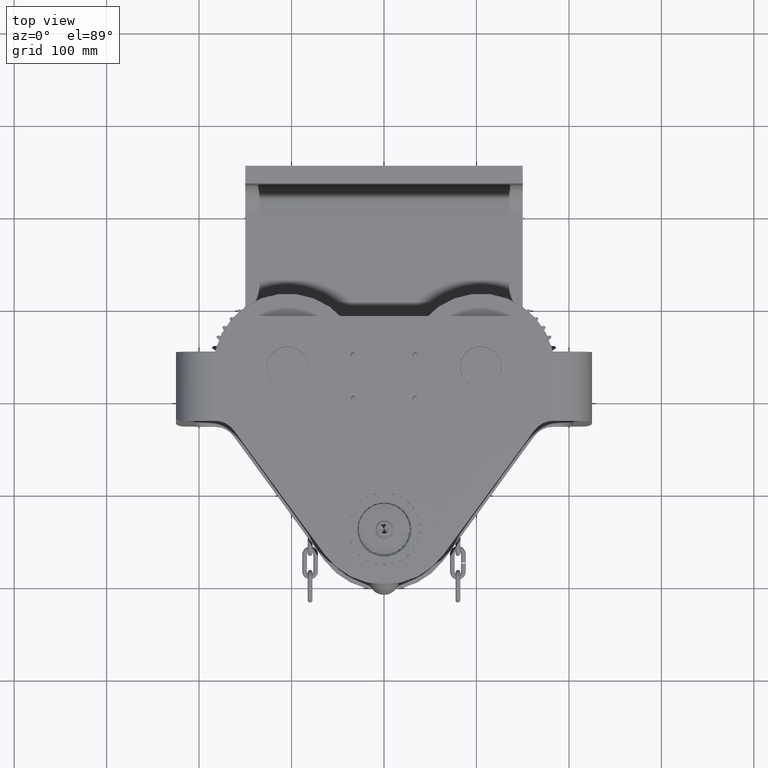
[diagram: clean part render]
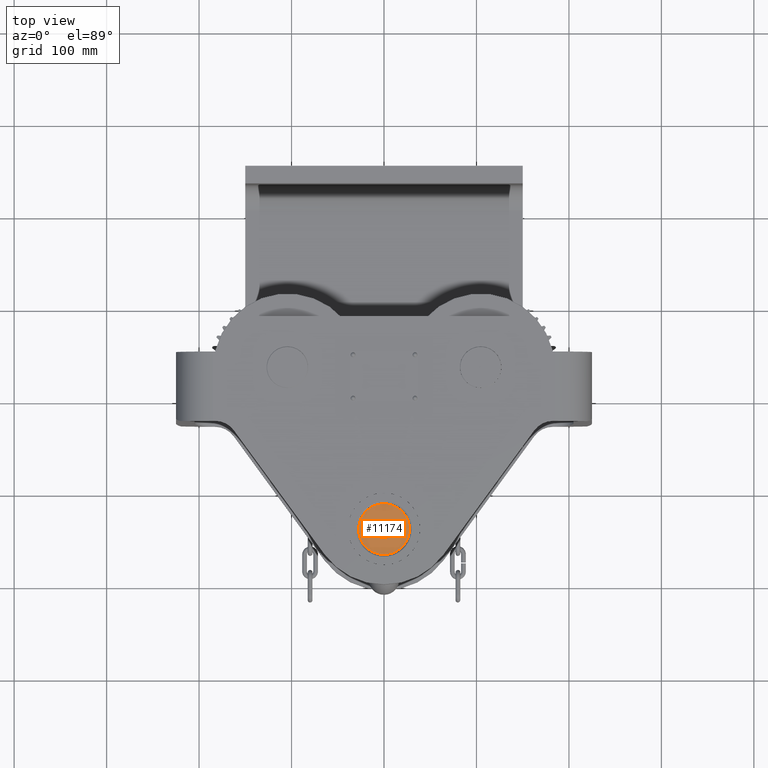
[diagram: same view with one face highlighted and labeled with its STEP entity id]
A machine part, top view. The second image highlights one B-rep face of the part: STEP entity #11174.
In plain terms, the highlighted planar face has unit normal (-0, -0, -1).
Its self-contained STEP definition (entity closure, byte-faithful):
#1401 = CARTESIAN_POINT ( 'NONE',  ( -1.823111284671525700E-014, -215.9999999999998900, 177.0000000000000300 ) ) ;
#2033 = AXIS2_PLACEMENT_3D ( 'NONE', #17138, #37169, #47237 ) ;
#4564 = EDGE_LOOP ( 'NONE', ( #36966 ) ) ;
#5889 = VERTEX_POINT ( 'NONE', #33626 ) ;
#8256 = VERTEX_POINT ( 'NONE', #1401 ) ;
#11174 = ADVANCED_FACE ( 'NONE', ( #53195, #63656 ), #57325, .F. ) ;
#16515 = EDGE_LOOP ( 'NONE', ( #65800 ) ) ;
#17138 = CARTESIAN_POINT ( 'NONE',  ( -1.376419081416092300E-014, -243.4999999999998900, 177.0000000000000300 ) ) ;
#18930 = AXIS2_PLACEMENT_3D ( 'NONE', #21332, #52787, #42175 ) ;
#20863 = EDGE_CURVE ( 'NONE', #8256, #8256, #30596, .T. ) ;
#21332 = CARTESIAN_POINT ( 'NONE',  ( -1.538852609872613600E-014, -233.4999999999998900, 177.0000000000000300 ) ) ;
#23829 = DIRECTION ( 'NONE',  ( -4.087085498318075900E-018, -2.126349141558169400E-017, -1.000000000000000000 ) ) ;
#28189 = CIRCLE ( 'NONE', #50874, 10.49999999999998200 ) ;
#30596 = CIRCLE ( 'NONE', #2033, 27.49999999999999600 ) ;
#33626 = CARTESIAN_POINT ( 'NONE',  ( -1.546974286295439600E-014, -232.9999999999999100, 177.0000000000000300 ) ) ;
#36966 = ORIENTED_EDGE ( 'NONE', *, *, #20863, .T. ) ;
#37169 = DIRECTION ( 'NONE',  ( 4.087085498318075900E-018, 2.126349141558169400E-017, 1.000000000000000000 ) ) ;
#38562 = EDGE_CURVE ( 'NONE', #5889, #5889, #28189, .T. ) ;
#42175 = DIRECTION ( 'NONE',  ( -1.624335284565212700E-016, 1.000000000000000000, -2.126349141558169400E-017 ) ) ;
#47237 = DIRECTION ( 'NONE',  ( -1.624335284565212300E-016, 1.000000000000000000, 0.0000000000000000000 ) ) ;
#50874 = AXIS2_PLACEMENT_3D ( 'NONE', #64295, #23829, #54424 ) ;
#52787 = DIRECTION ( 'NONE',  ( -4.087085498318075900E-018, -2.126349141558169400E-017, -1.000000000000000000 ) ) ;
#53195 = FACE_OUTER_BOUND ( 'NONE', #4564, .T. ) ;
#54424 = DIRECTION ( 'NONE',  ( -1.624335284565214200E-016, 1.000000000000000000, 0.0000000000000000000 ) ) ;
#57325 = PLANE ( 'NONE',  #18930 ) ;
#63656 = FACE_BOUND ( 'NONE', #16515, .T. ) ;
#64295 = CARTESIAN_POINT ( 'NONE',  ( -1.376419081416092300E-014, -243.4999999999998900, 177.0000000000000300 ) ) ;
#65800 = ORIENTED_EDGE ( 'NONE', *, *, #38562, .T. ) ;